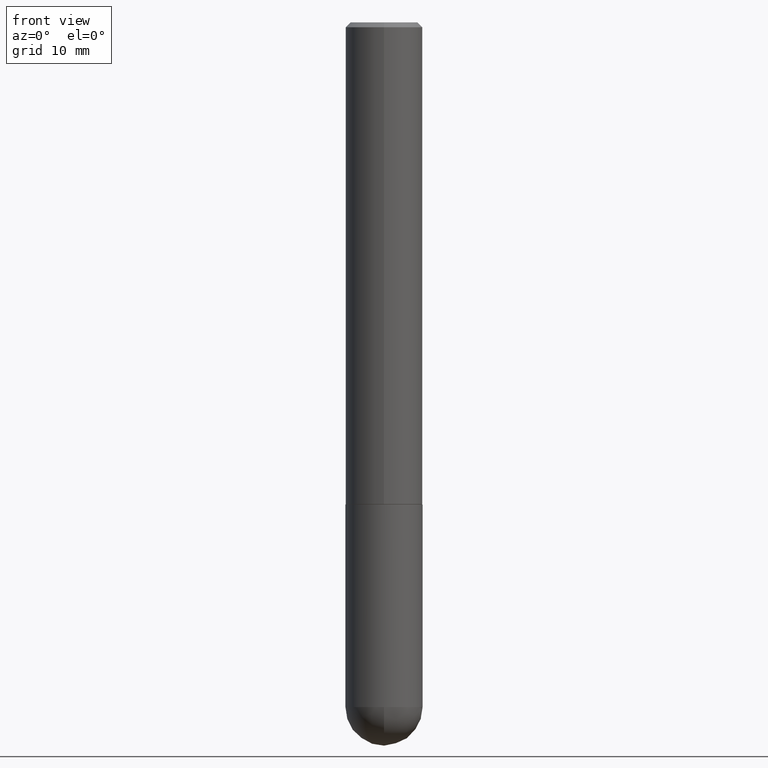
[diagram: clean part render]
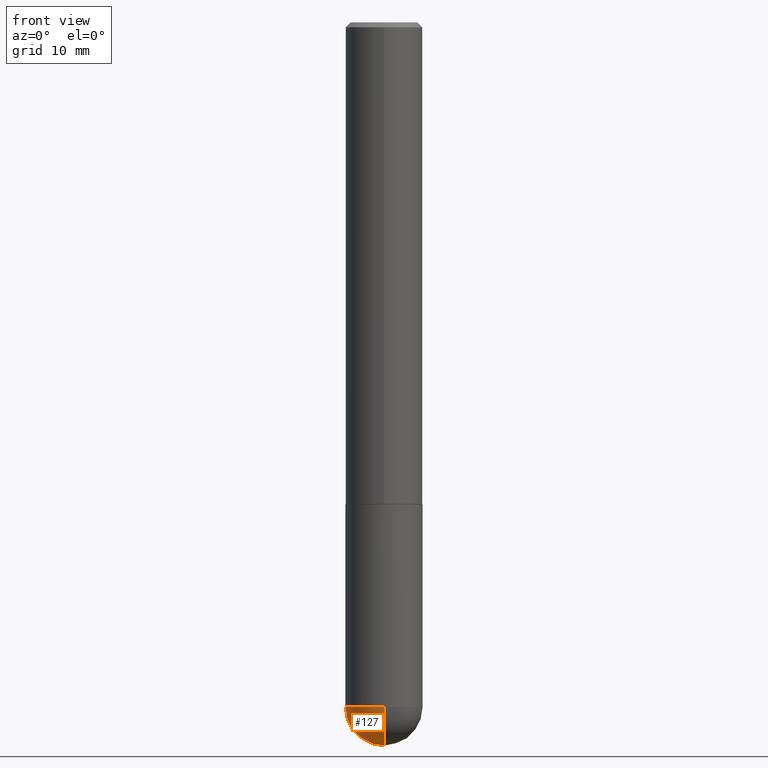
[diagram: same view with one face highlighted and labeled with its STEP entity id]
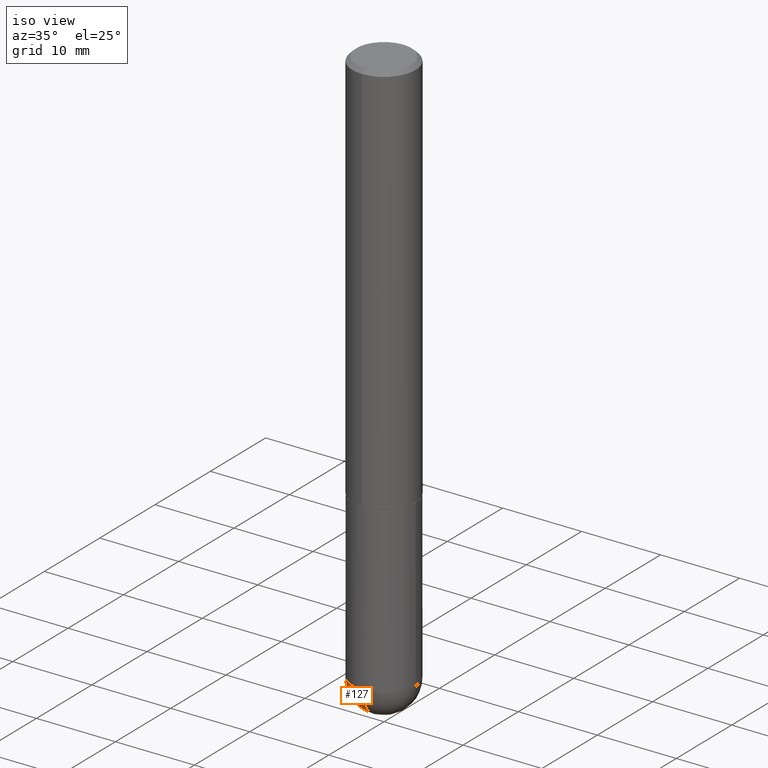
[diagram: same view with one face highlighted and labeled with its STEP entity id]
A machine part, front view. The second image highlights one B-rep face of the part: STEP entity #127.
A second angle (iso view) of the same face is appended — the face is thin or edge-on in the first view.
In plain terms, the highlighted spherical surface has radius 4.0005 mm.
Its self-contained STEP definition (entity closure, byte-faithful):
#2 = EDGE_CURVE ( 'NONE', #313, #119, #248, .T. ) ;
#23 = CIRCLE ( 'NONE', #105, 0.1575000000000000011 ) ;
#33 = EDGE_CURVE ( 'NONE', #313, #125, #174, .T. ) ;
#47 = CIRCLE ( 'NONE', #152, 0.1575000000000000011 ) ;
#53 = DIRECTION ( 'NONE',  ( 1.000000000000000000, -6.982962677686265922E-15, 4.883557194083112340E-29 ) ) ;
#69 = DIRECTION ( 'NONE',  ( -2.445468806185136597E-29, 3.491481338843145583E-15, 1.000000000000000000 ) ) ;
#88 = ORIENTED_EDGE ( 'NONE', *, *, #33, .T. ) ;
#105 = AXIS2_PLACEMENT_3D ( 'NONE', #151, #403, #150 ) ;
#115 = DIRECTION ( 'NONE',  ( -1.000000000000000000, 7.105427357601001070E-15, -4.926315508542082329E-29 ) ) ;
#119 = VERTEX_POINT ( 'NONE', #201 ) ;
#125 = VERTEX_POINT ( 'NONE', #200 ) ;
#127 = ADVANCED_FACE ( 'NONE', ( #301 ), #136, .T. ) ;
#129 = ORIENTED_EDGE ( 'NONE', *, *, #199, .F. ) ;
#136 = SPHERICAL_SURFACE ( 'NONE', #292, 0.1575000000000003064 ) ;
#143 = DIRECTION ( 'NONE',  ( -1.000000000000000000, 6.982962677686265922E-15, -4.883557194083112901E-29 ) ) ;
#150 = DIRECTION ( 'NONE',  ( 1.000000000000000000, -6.982962677686261977E-15, 0.000000000000000000 ) ) ;
#151 = CARTESIAN_POINT ( 'NONE',  ( 6.835818953929311707E-29, -9.759737786468243605E-15, -2.795299999999999674 ) ) ;
#152 = AXIS2_PLACEMENT_3D ( 'NONE', #356, #69, #271 ) ;
#155 = EDGE_LOOP ( 'NONE', ( #246, #88, #129, #367 ) ) ;
#174 = CIRCLE ( 'NONE', #194, 0.1575000000000003064 ) ;
#191 = DIRECTION ( 'NONE',  ( 6.982962677686265133E-15, 1.000000000000000000, 0.000000000000000000 ) ) ;
#194 = AXIS2_PLACEMENT_3D ( 'NONE', #231, #115, #364 ) ;
#199 = EDGE_CURVE ( 'NONE', #363, #125, #47, .T. ) ;
#200 = CARTESIAN_POINT ( 'NONE',  ( -1.119104808822091931E-15, -0.1575000000000101319, -2.795299999999998786 ) ) ;
#201 = CARTESIAN_POINT ( 'NONE',  ( 1.099816621735654731E-15, 0.1574999999999901201, -2.795300000000000118 ) ) ;
#214 = AXIS2_PLACEMENT_3D ( 'NONE', #344, #53, #191 ) ;
#231 = CARTESIAN_POINT ( 'NONE',  ( 6.504699176015425459E-29, -1.023392015460829390E-14, -2.795299999999999674 ) ) ;
#232 = CARTESIAN_POINT ( 'NONE',  ( -0.1575000000000000011, -7.197254592168330052E-15, -2.795299999999999674 ) ) ;
#246 = ORIENTED_EDGE ( 'NONE', *, *, #2, .F. ) ;
#248 = CIRCLE ( 'NONE', #214, 0.1575000000000003064 ) ;
#257 = EDGE_CURVE ( 'NONE', #119, #363, #23, .T. ) ;
#267 = DIRECTION ( 'NONE',  ( 6.982962677686265922E-15, 1.000000000000000000, -3.469013325287946588E-15 ) ) ;
#271 = DIRECTION ( 'NONE',  ( 1.000000000000000000, -6.982962677686261977E-15, 0.000000000000000000 ) ) ;
#292 = AXIS2_PLACEMENT_3D ( 'NONE', #323, #143, #267 ) ;
#297 = CARTESIAN_POINT ( 'NONE',  ( 6.896594947516873652E-29, -1.077418437193280573E-14, -2.952799999999999869 ) ) ;
#301 = FACE_OUTER_BOUND ( 'NONE', #155, .T. ) ;
#313 = VERTEX_POINT ( 'NONE', #297 ) ;
#323 = CARTESIAN_POINT ( 'NONE',  ( 6.504699176015425459E-29, -1.023392015460829390E-14, -2.795299999999999674 ) ) ;
#344 = CARTESIAN_POINT ( 'NONE',  ( 6.504699176015425459E-29, -1.023392015460829390E-14, -2.795299999999999674 ) ) ;
#356 = CARTESIAN_POINT ( 'NONE',  ( 6.835818953929311707E-29, -9.759737786468243605E-15, -2.795299999999999674 ) ) ;
#363 = VERTEX_POINT ( 'NONE', #232 ) ;
#364 = DIRECTION ( 'NONE',  ( -7.105427357601000281E-15, -1.000000000000000000, 0.000000000000000000 ) ) ;
#367 = ORIENTED_EDGE ( 'NONE', *, *, #257, .F. ) ;
#403 = DIRECTION ( 'NONE',  ( -2.445468806185136597E-29, 3.491481338843145583E-15, 1.000000000000000000 ) ) ;